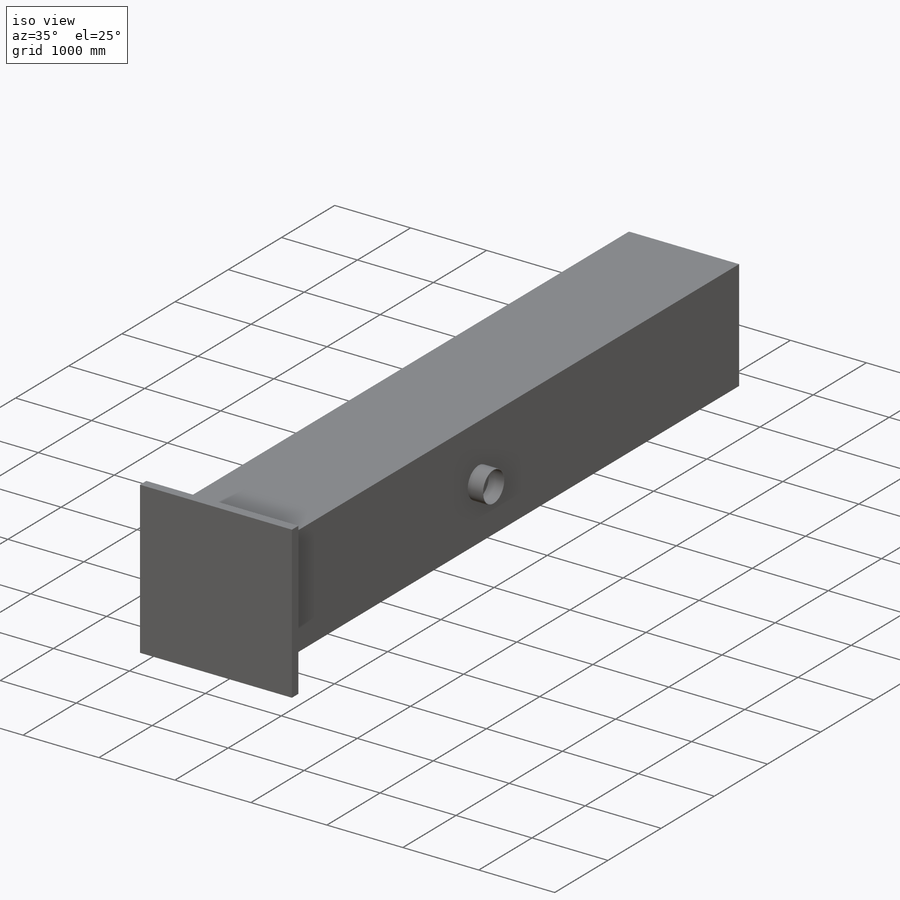
[diagram: iso view]
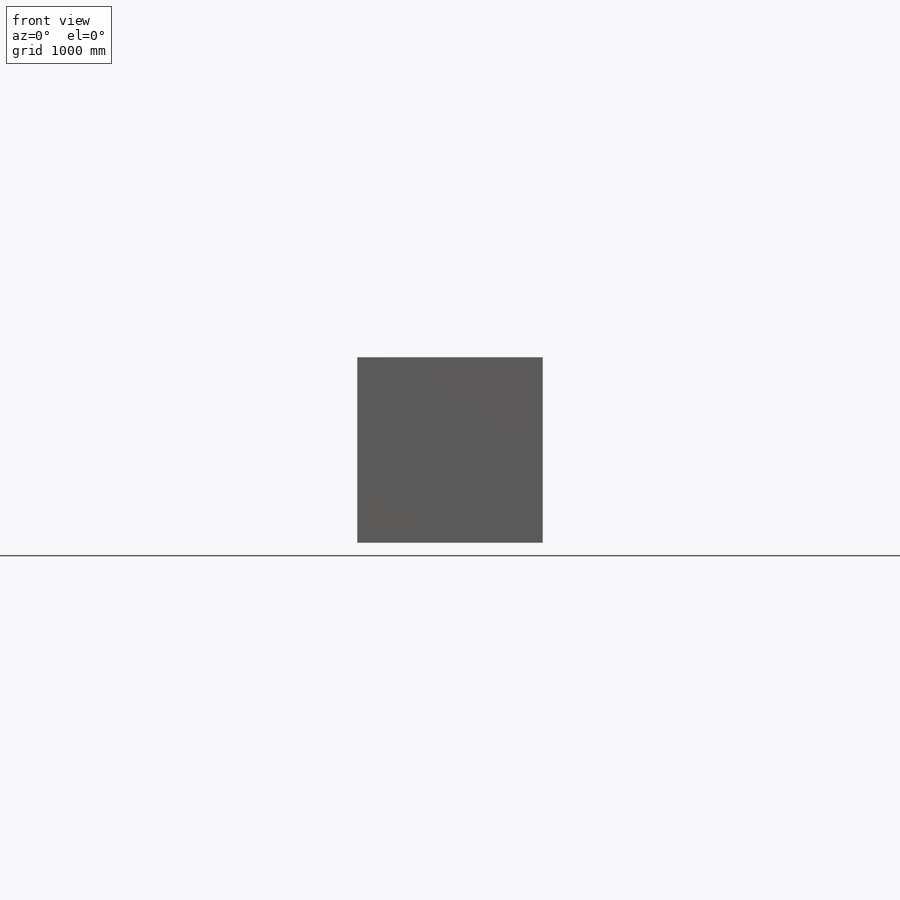
[diagram: front view]
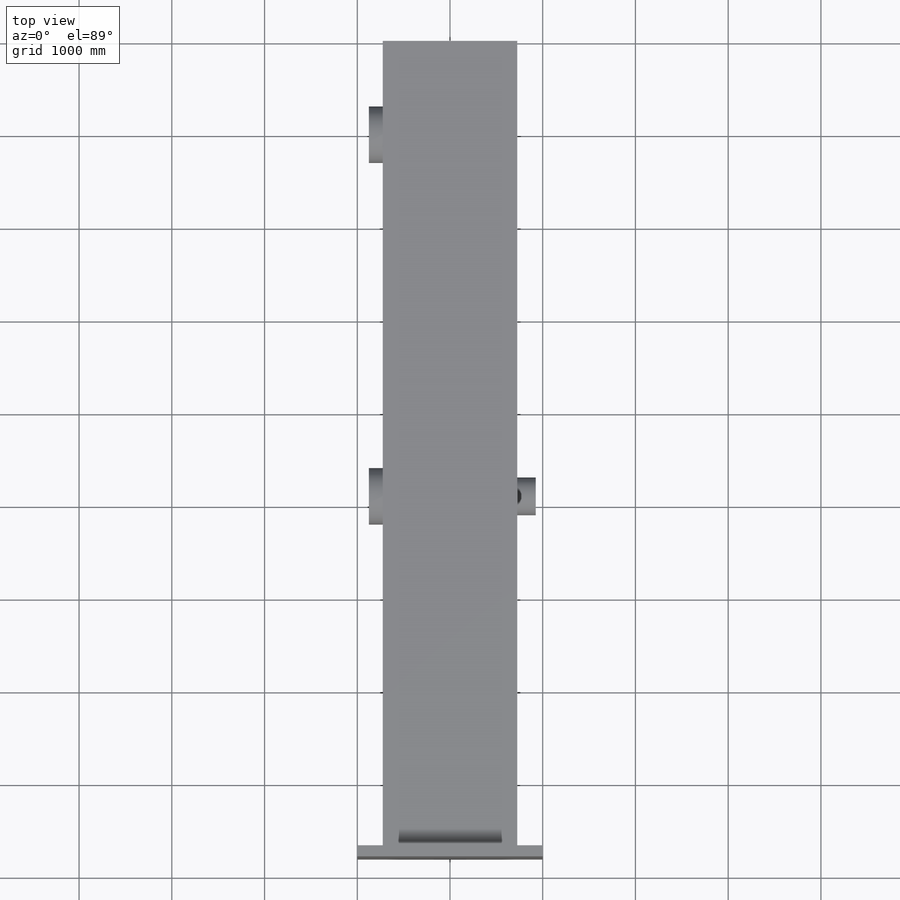
[diagram: top view]
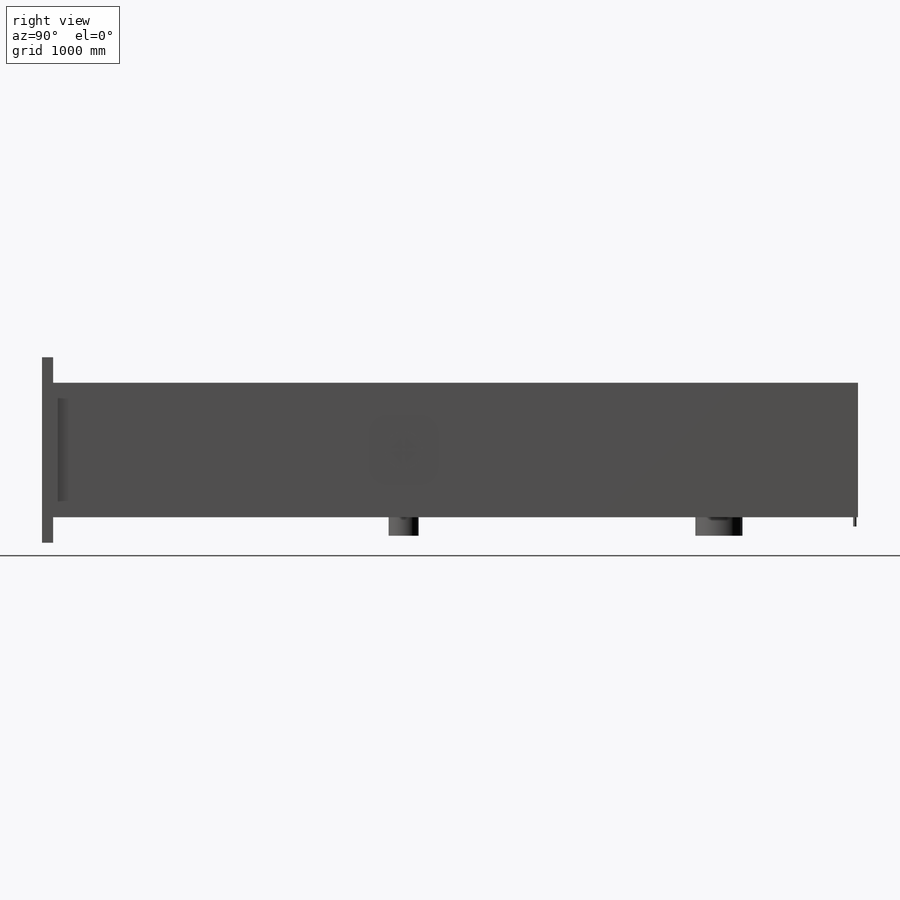
[diagram: right view]
SOLIDWORKS PART (.sldprt)
format: sldprt  version: not decoded by parser v0  size: 270,336 bytes
history: native  units: mm
features: sketch x6, extrude x5, material x1, shell x1 (+16 scaffold rows collapsed)
feature tree (29):
  scaffold x16  (default folders/planes/origin — collapsed)
  material  "Material <not specified>"
  sketch  "Sketch1"  dims[D1=1450.0mm D2=725.0mm D3=1450.0mm D4=725.0mm]
  extrude  "Extrude1"  Depth=8680mm
  sketch  "Sketch2"  dims[D1=275.0mm]
  extrude  "Extrude2"  Depth=120mm
  sketch  "Sketch3"  dims[c1.D1=508.0mm c1.D2=323.9mm c1.D3=4900.0mm c1.D4=1500.0mm c2.D1=200.0mm c2.D5=6.3mm c2.D6=10.0mm c2.D7=5.0mm]
  sketch  "Sketch5"  dims[D1=610.0mm D2=610.0mm D3=1000.0mm D4=4900.0mm]
  extrude  "Extrude-Thin2"  Depth=150mm
  shell  "Shell1"  Thickness=10mm
  sketch  "Sketch6"  dims[D1=406.4mm D2=4900.0mm]
  extrude  "Extrude-Thin3"  Depth=200mm
  sketch  "Sketch7"  dims[D1=34.3mm D2=35.0mm]
  extrude  "Extrude-Thin4"  Depth=100mm
decode coverage: 12 of 12 modeling features carry decoded parameters
note: suppression state not decoded; provenance and decode notes live in map.json
